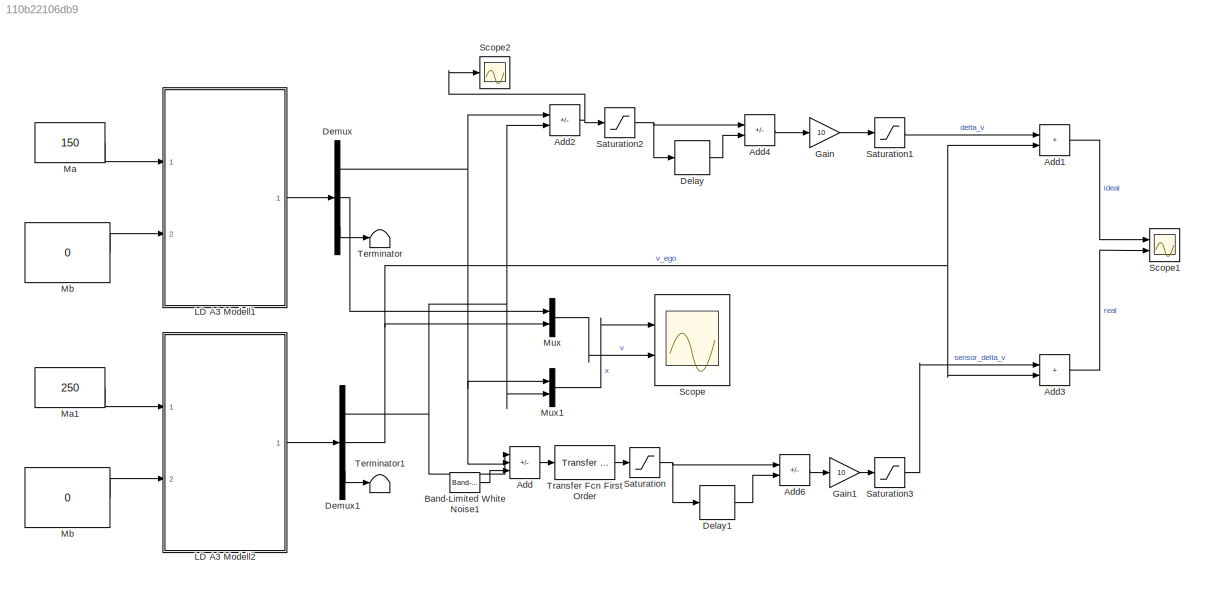
MODEL slx_110b22106db9
KIND model
CONFIG AbsTol = auto
CONFIG EnableMultiTasking = off
CONFIG FixedStep = 0.01
CONFIG MaxStep = auto
CONFIG MinStep = auto
CONFIG RelTol = 1e-3
CONFIG SampleTimeConstraint = Unconstrained
CONFIG SolverName = ode3
CONFIG StartTime = 0.0
CONFIG StopTime = 70
BLOCK [Sum] Add
  IconShape = rectangular
  Inputs = +-+
  Ports = [3, 1]
BLOCK [Sum] Add1
  IconShape = rectangular
  Ports = [2, 1]
BLOCK [Sum] Add2
  IconShape = rectangular
  Inputs = +-
  Ports = [2, 1]
BLOCK [Sum] Add3
  IconShape = rectangular
  Ports = [2, 1]
BLOCK [Sum] Add4
  IconShape = rectangular
  Inputs = +-
  Ports = [2, 1]
BLOCK [Sum] Add6
  IconShape = rectangular
  Inputs = +-
  Ports = [2, 1]
BLOCK [Reference] Band-Limited White Noise1  REF=simulink/Sources/Band-Limited
White Noise
  Ports = [0, 1]
  SourceBlock = simulink/Sources/Band-Limited\nWhite Noise
  SourceProductBaseCode = SL
  SourceType = Band-Limited White Noise.
BLOCK [Delay] Delay
  DelayLength = 10
  InputPortMap = u0
  Ports = [1, 1]
BLOCK [Delay] Delay1
  DelayLength = 10
  InputPortMap = u0
  Ports = [1, 1]
BLOCK [Demux] Demux
  Outputs = 3
  Ports = [1, 3]
BLOCK [Demux] Demux1
  Outputs = 3
  Ports = [1, 3]
BLOCK [Gain] Gain
  Gain = 10
BLOCK [Gain] Gain1
  Gain = 10
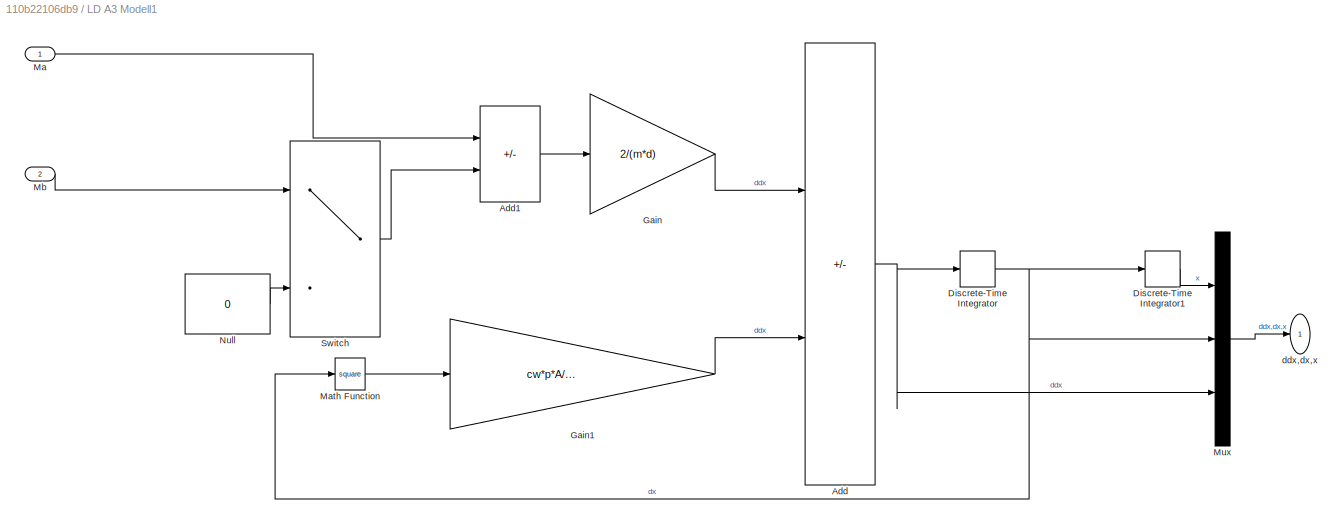
BLOCK [SubSystem] LD A3 Modell1
  Ports = [2, 1]
  RequestExecContextInheritance = off
BLOCK [Sum] LD A3 Modell1/Add
  IconShape = rectangular
  Inputs = +-
  Ports = [2, 1]
BLOCK [Sum] LD A3 Modell1/Add1
  IconShape = rectangular
  Inputs = +-
  Ports = [2, 1]
BLOCK [DiscreteIntegrator] LD A3 Modell1/Discrete-Time Integrator
  ICPrevOutput = DiscIntNeverNeededParam
  ICPrevScaledInput = DiscIntNeverNeededParam
  InitialCondition = v_start
  InitialConditionSetting = Auto
  Ports = [1, 1]
  SampleTime = -1
BLOCK [DiscreteIntegrator] LD A3 Modell1/Discrete-Time Integrator1
  ICPrevOutput = DiscIntNeverNeededParam
  ICPrevScaledInput = DiscIntNeverNeededParam
  InitialCondition = x_start
  InitialConditionSetting = Auto
  Ports = [1, 1]
  SampleTime = -1
BLOCK [Gain] LD A3 Modell1/Gain
  Gain = 2/(m*d)
BLOCK [Gain] LD A3 Modell1/Gain1
  Gain = cw*p*A/2/m
BLOCK [Inport] LD A3 Modell1/Ma 
BLOCK [Math] LD A3 Modell1/Math Function
  Operator = square
  Ports = [1, 1]
  SignedPower = on
BLOCK [Inport] LD A3 Modell1/Mb 
  Port = 2
BLOCK [Mux] LD A3 Modell1/Mux
  DisplayOption = bar
  Inputs = 3
  Ports = [3, 1]
BLOCK [Constant] LD A3 Modell1/Null
  Value = 0
BLOCK [Switch] LD A3 Modell1/Switch
  Criteria = u2 > Threshold
  InputSameDT = off
  SaturateOnIntegerOverflow = off
BLOCK [Outport] LD A3 Modell1/ddx,dx,x
  VectorParamsAs1DForOutWhenUnconnected = off
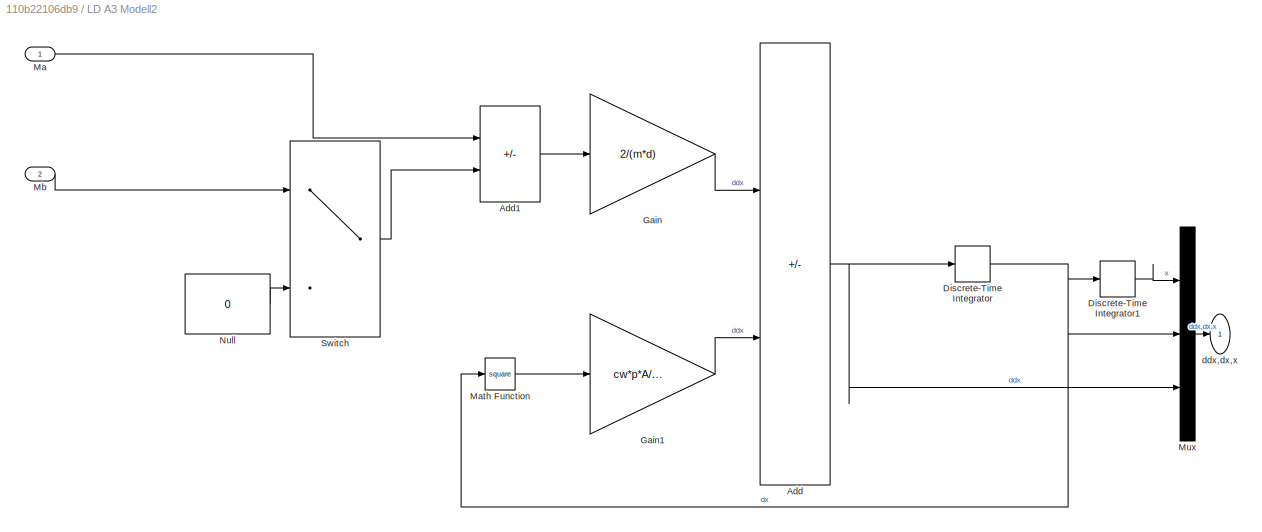
BLOCK [SubSystem] LD A3 Modell2
  Ports = [2, 1]
  RequestExecContextInheritance = off
BLOCK [Sum] LD A3 Modell2/Add
  IconShape = rectangular
  Inputs = +-
  Ports = [2, 1]
BLOCK [Sum] LD A3 Modell2/Add1
  IconShape = rectangular
  Inputs = +-
  Ports = [2, 1]
BLOCK [DiscreteIntegrator] LD A3 Modell2/Discrete-Time Integrator
  ICPrevOutput = DiscIntNeverNeededParam
  ICPrevScaledInput = DiscIntNeverNeededParam
  InitialCondition = v_start
  InitialConditionSetting = Auto
  Ports = [1, 1]
  SampleTime = -1
BLOCK [DiscreteIntegrator] LD A3 Modell2/Discrete-Time Integrator1
  ICPrevOutput = DiscIntNeverNeededParam
  ICPrevScaledInput = DiscIntNeverNeededParam
  InitialCondition = x_start
  InitialConditionSetting = Auto
  Ports = [1, 1]
  SampleTime = -1
BLOCK [Gain] LD A3 Modell2/Gain
  Gain = 2/(m*d)
BLOCK [Gain] LD A3 Modell2/Gain1
  Gain = cw*p*A/2/m
BLOCK [Inport] LD A3 Modell2/Ma 
BLOCK [Math] LD A3 Modell2/Math Function
  Operator = square
  Ports = [1, 1]
  SignedPower = on
BLOCK [Inport] LD A3 Modell2/Mb 
  Port = 2
BLOCK [Mux] LD A3 Modell2/Mux
  DisplayOption = bar
  Inputs = 3
  Ports = [3, 1]
BLOCK [Constant] LD A3 Modell2/Null
  Value = 0
BLOCK [Switch] LD A3 Modell2/Switch
  Criteria = u2 > Threshold
  InputSameDT = off
  SaturateOnIntegerOverflow = off
BLOCK [Outport] LD A3 Modell2/ddx,dx,x
  VectorParamsAs1DForOutWhenUnconnected = off
BLOCK [Constant] Ma
  Value = 150
BLOCK [Constant] Ma1
  Value = 250
BLOCK [Constant] Mb
  Value = 0
BLOCK [Constant] Mb 
  Value = 0
BLOCK [Mux] Mux
  DisplayOption = bar
  Inputs = 2
  Ports = [2, 1]
BLOCK [Mux] Mux1
  DisplayOption = bar
  Inputs = 2
  Ports = [2, 1]
BLOCK [Saturate] Saturation
  LowerLimit = 0
  UpperLimit = 200
BLOCK [Saturate] Saturation1
  LowerLimit = -50
  UpperLimit = 0
BLOCK [Saturate] Saturation2
  LowerLimit = 0
  UpperLimit = 200
BLOCK [Saturate] Saturation3
  LowerLimit = -50
  UpperLimit = 0
BLOCK [Scope] Scope
  Floating = off
  NumInputPorts = 2
  Ports = [2]
  ScopeSpecificationString = Simulink.scopes.TimeScopeBlockCfg('CurrentConfiguration', extmgr.ConfigurationSet(extmgr.Configuration('Core','General UI',true),extmgr.Configuration('Core','Source UI',true),extmgr.Configuration('Sources','WiredSimulink',true),extmgr.Configuration('Visuals','Time Domain',true,'SerializedDisplays',{struct('MinYLimReal','-325.95463','MaxYLimReal','2933.59167','YLabelReal','','MinYLimMag',' 0.00000'...<+2413ch>
BLOCK [Scope] Scope1
  Floating = off
  NumInputPorts = 2
  Ports = [2]
  ScopeSpecificationString = Simulink.scopes.TimeScopeBlockCfg('CurrentConfiguration', extmgr.ConfigurationSet(extmgr.Configuration('Core','General UI',true),extmgr.Configuration('Core','Source UI',true),extmgr.Configuration('Sources','WiredSimulink',true,'DataLoggingVariableName','ScopeData1'),extmgr.Configuration('Visuals','Time Domain',true,'SerializedDisplays',{struct('MinYLimReal','21.83242','MaxYLimReal','44.18651','YLa...<+2172ch>
BLOCK [Scope] Scope2
  Floating = off
  NumInputPorts = 1
  Ports = [1]
  ScopeSpecificationString = Simulink.scopes.TimeScopeBlockCfg('CurrentConfiguration', extmgr.ConfigurationSet(extmgr.Configuration('Core','General UI',true),extmgr.Configuration('Core','Source UI',true),extmgr.Configuration('Sources','WiredSimulink',true,'DataLoggingVariableName','ScopeData2'),extmgr.Configuration('Visuals','Time Domain',true,'SerializedDisplays',{struct('MinYLimReal','-450.43072','MaxYLimReal','550.04786','...<+1436ch>
BLOCK [Terminator] Terminator
BLOCK [Terminator] Terminator1
BLOCK [Reference] Transfer Fcn First Order  REF=simulink/Discrete/Transfer Fcn
First Order
  Ports = [1, 1]
  SourceBlock = simulink/Discrete/Transfer Fcn\nFirst Order
  SourceProductBaseCode = SL
  SourceType = First Order Transfer Fcn
LINE Add1:1 -> Scope1:1
NET Add2:1 -> Saturation2:1, Scope2:1
LINE Add3:1 -> Scope1:2
LINE Add4:1 -> Gain:1
LINE Add6:1 -> Gain1:1
LINE Add:1 -> Transfer Fcn First Order:1
LINE Band-Limited White Noise1:1 -> Add:3
LINE Delay1:1 -> Add6:2
LINE Delay:1 -> Add4:2
NET Demux1:1 -> Add2:2, Add:2, Mux1:2
NET Demux1:2 -> Add1:2, Add3:2, Mux:2
LINE Demux1:3 -> Terminator1:1
NET Demux:1 -> Add2:1, Add:1, Mux1:1
LINE Demux:2 -> Mux:1
LINE Demux:3 -> Terminator:1
LINE Gain1:1 -> Saturation3:1
LINE Gain:1 -> Saturation1:1
LINE LD A3 Modell1/Add1:1 -> LD A3 Modell1/Gain:1
NET LD A3 Modell1/Add:1 -> LD A3 Modell1/Discrete-Time Integrator:1, LD A3 Modell1/Mux:3
LINE LD A3 Modell1/Discrete-Time Integrator1:1 -> LD A3 Modell1/Mux:1
NET LD A3 Modell1/Discrete-Time Integrator:1 -> LD A3 Modell1/Discrete-Time Integrator1:1, LD A3 Modell1/Math Function:1, LD A3 Modell1/Mux:2
LINE LD A3 Modell1/Gain1:1 -> LD A3 Modell1/Add:2
LINE LD A3 Modell1/Gain:1 -> LD A3 Modell1/Add:1
LINE LD A3 Modell1/Ma :1 -> LD A3 Modell1/Add1:1
LINE LD A3 Modell1/Math Function:1 -> LD A3 Modell1/Gain1:1
LINE LD A3 Modell1/Mb :1 -> LD A3 Modell1/Switch:1
LINE LD A3 Modell1/Mux:1 -> LD A3 Modell1/ddx,dx,x:1
LINE LD A3 Modell1/Null:1 -> LD A3 Modell1/Switch:3
LINE LD A3 Modell1/Switch:1 -> LD A3 Modell1/Add1:2
LINE LD A3 Modell1:1 -> Demux:1
LINE LD A3 Modell2/Add1:1 -> LD A3 Modell2/Gain:1
NET LD A3 Modell2/Add:1 -> LD A3 Modell2/Discrete-Time Integrator:1, LD A3 Modell2/Mux:3
LINE LD A3 Modell2/Discrete-Time Integrator1:1 -> LD A3 Modell2/Mux:1
NET LD A3 Modell2/Discrete-Time Integrator:1 -> LD A3 Modell2/Discrete-Time Integrator1:1, LD A3 Modell2/Math Function:1, LD A3 Modell2/Mux:2
LINE LD A3 Modell2/Gain1:1 -> LD A3 Modell2/Add:2
LINE LD A3 Modell2/Gain:1 -> LD A3 Modell2/Add:1
LINE LD A3 Modell2/Ma :1 -> LD A3 Modell2/Add1:1
LINE LD A3 Modell2/Math Function:1 -> LD A3 Modell2/Gain1:1
LINE LD A3 Modell2/Mb :1 -> LD A3 Modell2/Switch:1
LINE LD A3 Modell2/Mux:1 -> LD A3 Modell2/ddx,dx,x:1
LINE LD A3 Modell2/Null:1 -> LD A3 Modell2/Switch:3
LINE LD A3 Modell2/Switch:1 -> LD A3 Modell2/Add1:2
LINE LD A3 Modell2:1 -> Demux1:1
LINE Ma1:1 -> LD A3 Modell2:1
LINE Ma:1 -> LD A3 Modell1:1
LINE Mb :1 -> LD A3 Modell1:2
LINE Mb:1 -> LD A3 Modell2:2
LINE Mux1:1 -> Scope:1
LINE Mux:1 -> Scope:2
LINE Saturation1:1 -> Add1:1
NET Saturation2:1 -> Add4:1, Delay:1
LINE Saturation3:1 -> Add3:1
NET Saturation:1 -> Add6:1, Delay1:1
LINE Transfer Fcn First Order:1 -> Saturation:1
note: NET lines group one-source signal fan-out (src -> all destinations, sorted); 1:1 wires keep LINE
